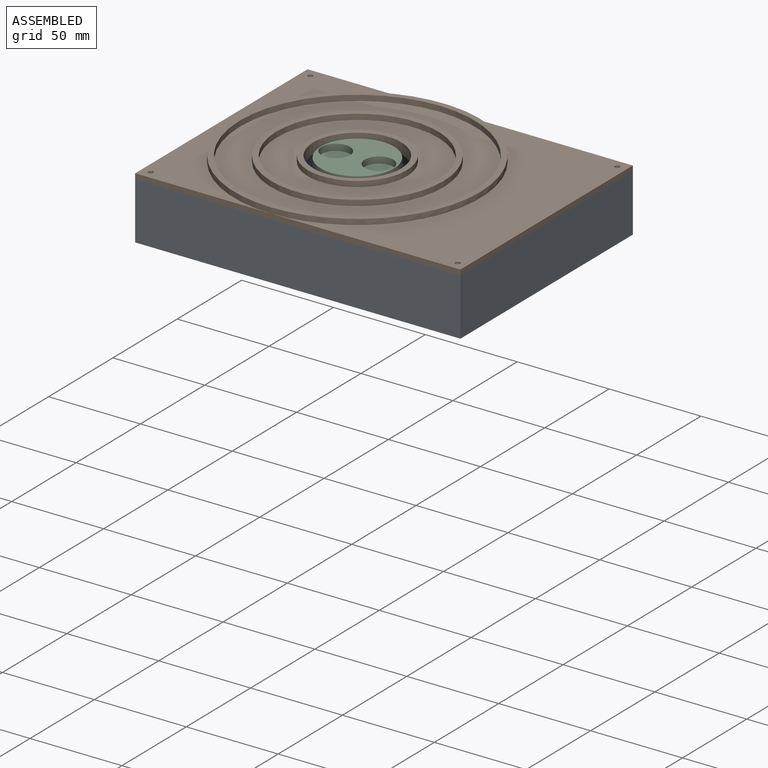
[diagram: assembled view]
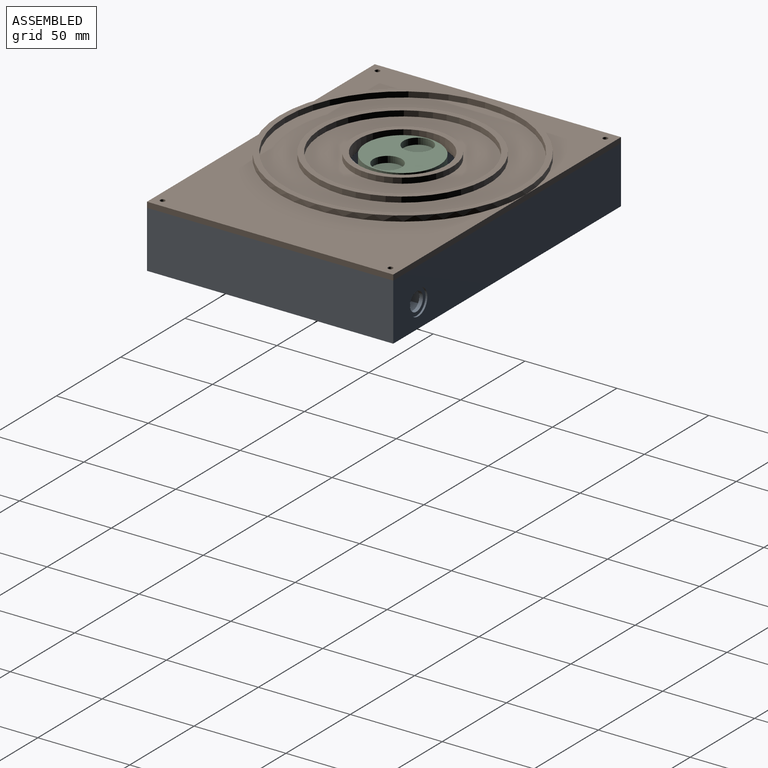
[diagram: assembled view, second angle]
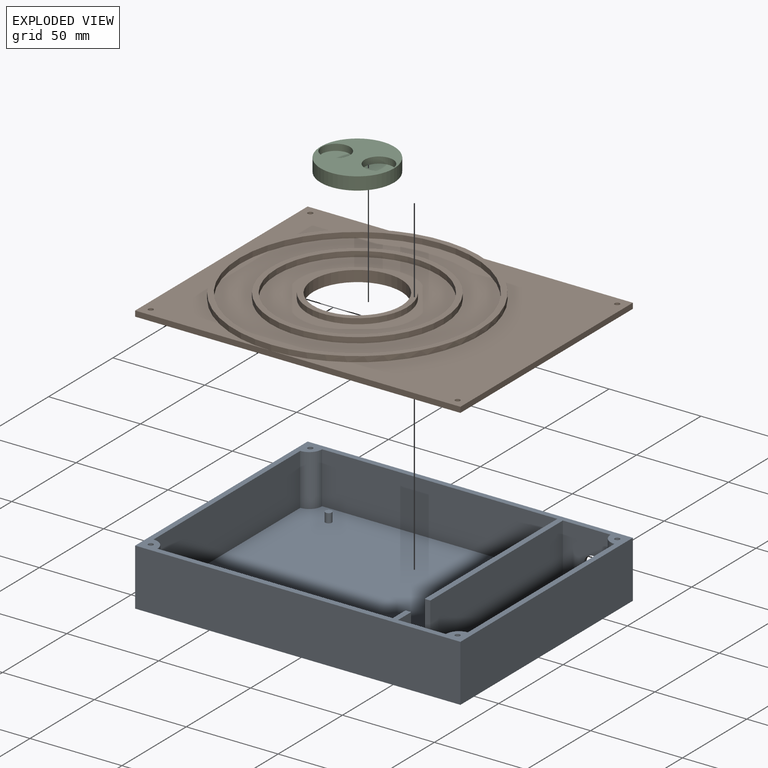
[diagram: exploded view]
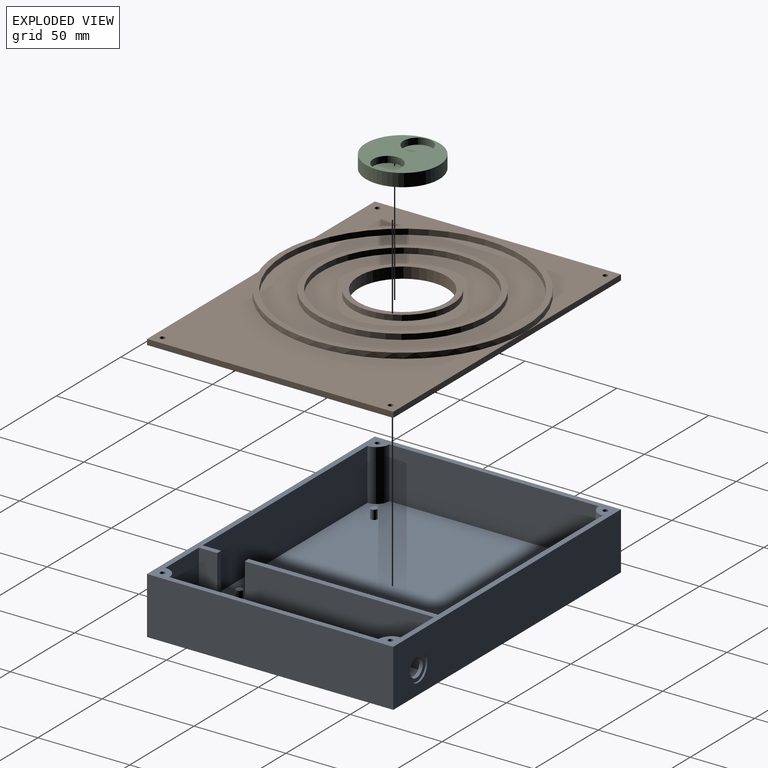
[diagram: exploded view, second angle]
ASSEMBLY  parts=3 mates=3
PART A: 46 faces, bbox 177.2x134.2x31.2 mm
  f0: cylinder r=5mm len=10mm, axis (0,1,0), area 62.8mm2, adj f9,f45
  f1: plane 177x31mm, normal (0,1,0), area 5333.1mm2, adj f2,f16,f17,f20,f44
  f2: plane 134x31mm, normal (1,0,0), area 4154mm2, adj f1,f3,f17,f20
  f3: plane 177x31mm, normal (0,-1,0), area 5487mm2, adj f2,f16,f17,f20
  f4: plane 128x28mm, normal (0,-1,0), area 3584mm2, adj f5,f14,f17,f18
  f5: cylinder r=7mm len=28mm, axis (0,0,1), area 307.9mm2, adj f4,f6,f17,f18
  f6: plane 114x28mm, normal (1,0,0), area 3192mm2, adj f5,f7,f17,f18
  f7: cylinder r=7mm len=28mm, axis (0,0,1), area 307.9mm2, adj f6,f8,f17,f18
  f8: plane 128x28mm, normal (0,1,0), area 3584mm2, adj f7,f14,f17,f18
  f9: plane 33x28mm, normal (0,-1,0), area 730.5mm2, adj f0,f10,f13,f15,f17,f19,f41,f42
  f10: plane 128x28mm, normal (1,0,0), area 3269mm2, adj f9,f11,f17,f19,f29,f30,f31
  f11: plane 28x26mm, normal (0,1,0), area 728mm2, adj f10,f12,f17,f19
  f12: cylinder r=7mm len=28mm, axis (0,0,1), area 307.9mm2, adj f11,f13,f17,f19
  f13: plane 121x28mm, normal (-1,0,0), area 3273mm2, adj f9,f12,f15,f17,f19,f41,f43
  f14: plane 128x28mm, normal (-1,0,0), area 3269mm2, adj f4,f8,f17,f18,f29,f30,f31
  f15: cylinder r=7mm len=13mm, axis (0,0,1), area 142.9mm2, adj f9,f13,f17,f41
  f16: plane 134x31mm, normal (-1,0,0), area 4154mm2, adj f1,f3,f17,f20
  f17: plane 177x134mm, normal (0,0,1), area 2300mm2, adj f1,f2,f3,f4,f5,f6,f7,f8
  f18: plane 135x128mm, normal (0,0,1), area 17164.5mm2, adj f4,f5,f6,f7,f8,f14,f21,f23
  f19: plane 128x33mm, normal (0,0,1), area 4185.5mm2, adj f9,f10,f11,f12,f13
  f20: plane 177x134mm, normal (0,0,-1), area 23718mm2, adj f1,f2,f3,f16
  f21: cylinder r=1.75mm len=5mm, axis (0,0,-1), area 55mm2, adj f18,f22
  f22: plane 3.5x3.5mm, normal (0,0,1), area 9.6mm2, adj f21
  f23: cylinder r=1.75mm len=5mm, axis (0,0,-1), area 55mm2, adj f18,f24
  f24: plane 3.5x3.5mm, normal (0,0,1), area 9.6mm2, adj f23
  f25: cylinder r=1.75mm len=5mm, axis (0,0,-1), area 55mm2, adj f18,f26
  f26: plane 3.5x3.5mm, normal (0,0,1), area 9.6mm2, adj f25
  f27: cylinder r=1.75mm len=5mm, axis (0,0,-1), area 55mm2, adj f18,f28
  f28: plane 3.5x3.5mm, normal (0,0,1), area 9.6mm2, adj f27
  f29: plane 21x3mm, normal (0,1,0), area 63mm2, adj f10,f14,f17,f31
  f30: plane 21x3mm, normal (0,-1,0), area 63mm2, adj f10,f14,f17,f31
  f31: plane 15x3mm, normal (0,0,1), area 45mm2, adj f10,f14,f29,f30
  f32: cylinder r=1.35mm len=12mm, axis (0,0,1), area 101.8mm2, adj f17,f33
  f33: cone r=0mm half-angle=59deg, axis (0,0,1), area 6.7mm2, adj f32
  f34: cylinder r=1.35mm len=12mm, axis (0,0,1), area 101.8mm2, adj f17,f35
  f35: cone r=0mm half-angle=59deg, axis (0,0,1), area 6.7mm2, adj f34
  f36: cylinder r=1.35mm len=12mm, axis (0,0,1), area 101.8mm2, adj f17,f37
  f37: cone r=0mm half-angle=59deg, axis (0,0,1), area 6.7mm2, adj f36
  f38: cylinder r=1.35mm len=12mm, axis (0,0,1), area 101.8mm2, adj f17,f39
  f39: cone r=0mm half-angle=59deg, axis (0,0,1), area 6.7mm2, adj f38
  f40: plane 0.73x0.73mm, normal (0,0,-1), area 0.3mm2, adj f41,f42,f43
  f41: cone r=7mm half-angle=45deg, axis (0,0,1), area 51.2mm2, adj f9,f13,f15,f40,f42,f43
  f42: plane 1.95x1.22mm, normal (0,-0.71,-0.71), area 1.3mm2, adj f9,f40,f41,f43
  f43: plane 1.95x1.22mm, normal (-0.71,0,-0.71), area 1.3mm2, adj f13,f40,f41,f42
  f44: cylinder r=7mm len=14mm, axis (0,1,0), area 44mm2, adj f1,f45
  f45: plane 14x14mm, normal (0,1,0), area 75.4mm2, adj f0,f44
PART B: 22 faces, bbox 177x134x6 mm
  f0: plane 134x74mm, normal (0,0,1), area 2853.2mm2, adj f5,f6,f7,f15,f18,f21
  f1: plane 134x103mm, normal (0,0,1), area 6739.2mm2, adj f4,f5,f7,f15,f19,f20
  f2: plane 128x128mm, normal (0,0,1), area 5928.2mm2, adj f13,f16
  f3: plane 88x88mm, normal (0,0,1), area 3791.9mm2, adj f10,f12
  f4: plane 134x3mm, normal (1,0,0), area 402mm2, adj f1,f5,f7,f9
  f5: plane 177x3mm, normal (0,1,0), area 531mm2, adj f0,f1,f4,f6,f9
  f6: plane 134x3mm, normal (-1,0,0), area 402mm2, adj f0,f5,f7,f9
  f7: plane 177x3mm, normal (0,-1,0), area 531mm2, adj f0,f1,f4,f6,f9
  f8: cylinder r=24mm len=48mm, axis (0,0,1), area 904.8mm2, adj f9,f11
  f9: plane 177x134mm, normal (0,0,-1), area 21885.5mm2, adj f4,f5,f6,f7,f8,f18,f19,f20
  f10: cylinder r=27mm len=54mm, axis (0,0,-1), area 508.9mm2, adj f3,f11
  f11: plane 54x54mm, normal (0,0,1), area 480.7mm2, adj f8,f10
  f12: cylinder r=44mm len=88mm, axis (0,0,-1), area 829.4mm2, adj f3,f14
  f13: cylinder r=47mm len=94mm, axis (0,0,-1), area 885.9mm2, adj f2,f14
  f14: plane 94x94mm, normal (0,0,1), area 857.7mm2, adj f12,f13
  f15: cylinder r=67mm len=134mm, axis (0,0,-1), area 1262.9mm2, adj f0,f1,f17
  f16: cylinder r=64mm len=128mm, axis (0,0,-1), area 1206.4mm2, adj f2,f17
  f17: plane 134x134mm, normal (0,0,1), area 1234.6mm2, adj f15,f16
  f18: cylinder r=1.35mm len=3mm, axis (0,0,1), area 25.4mm2, adj f0,f9
  f19: cylinder r=1.35mm len=3mm, axis (0,0,1), area 25.4mm2, adj f1,f9
  f20: cylinder r=1.35mm len=3mm, axis (0,0,1), area 25.4mm2, adj f1,f9
  f21: cylinder r=1.35mm len=3mm, axis (0,0,1), area 25.4mm2, adj f0,f9
PART C: 7 faces, bbox 40x40x7 mm
  f0: plane 40x40mm, normal (0,0,1), area 879.3mm2, adj f1,f3,f5
  f1: cylinder r=20mm len=40mm, axis (0,0,1), area 879.6mm2, adj f0,f2
  f2: plane 40x40mm, normal (0,0,-1), area 1256.6mm2, adj f1
  f3: cylinder r=7.75mm len=15.5mm, axis (0,0,1), area 170.4mm2, adj f0,f4
  f4: plane 15.5x15.5mm, normal (0,0,1), area 188.7mm2, adj f3
  f5: cylinder r=7.75mm len=15.5mm, axis (0,0,1), area 170.4mm2, adj f0,f6
  f6: plane 15.5x15.5mm, normal (0,0,1), area 188.7mm2, adj f5
PLACE A t=(-11.99,0.11,16.66)mm fixed
PLACE B t=(-11.99,0.11,16.66)mm
PLACE C t=(-11.99,0.11,16.66)mm
MATE planar C.f1 <-> B.f8  axis (0,0,1) through (-11.99,0.11,18.66)mm
MATE slider B.f8 <-> C.f1  axis (0,0,1) through (-11.99,0.11,16.66)mm
MATE fastened A.f38 <-> B.f21  axis (0,0,1) through (-80.99,-61.89,13.66)mm
